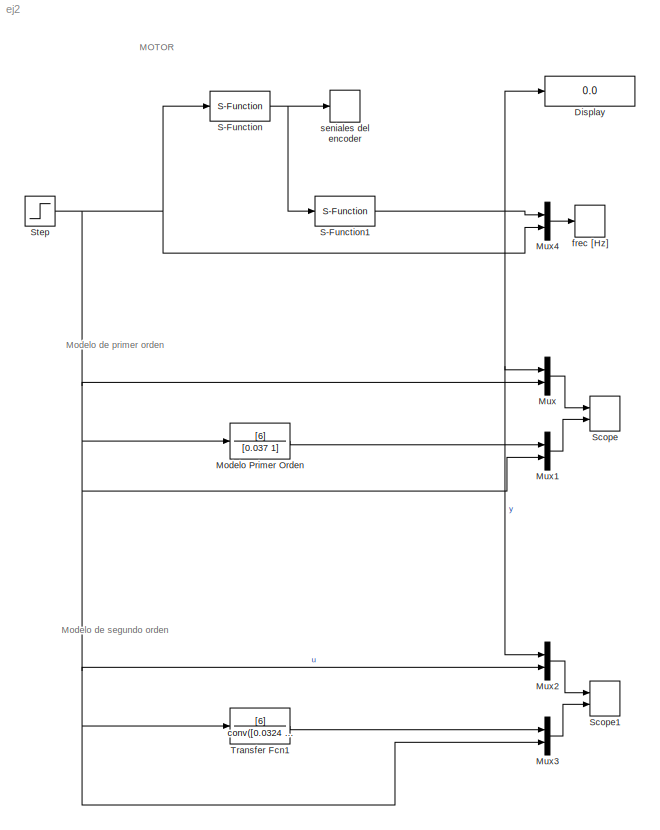
MODEL ej2
KIND model
BLOCK [Display] Display
  Decimation = 1
  Ports = [1]
  SID = 6
BLOCK [TransferFcn] Modelo Primer Orden
  Denominator = [0.037 1]
  Numerator = [6]
  SID = 14
BLOCK [Mux] Mux
  DisplayOption = bar
  Inputs = 2
  Ports = [2, 1]
  SID = 12
BLOCK [Mux] Mux1
  DisplayOption = bar
  Inputs = 2
  Ports = [2, 1]
  SID = 15
BLOCK [Mux] Mux2
  DisplayOption = bar
  Inputs = 2
  Ports = [2, 1]
  SID = 17
BLOCK [Mux] Mux3
  DisplayOption = bar
  Inputs = 2
  Ports = [2, 1]
  SID = 18
BLOCK [Mux] Mux4
  DisplayOption = bar
  Inputs = 2
  Ports = [2, 1]
  SID = 24
BLOCK [S-Function] S-Function
  FunctionName = dcmotor_qenc
  Parameters = 10
  Ports = [1, 1]
  SID = 1
BLOCK [S-Function] S-Function1
  FunctionName = encoder
  Parameters = 1E-5 10
  Ports = [1, 1]
  SID = 4
BLOCK [TimeScope] Scope
  NumInputPorts = 2
  Ports = [2]
  SID = 13
  ScopeSpecificationString = Simulink.scopes.TimeScopeBlockCfg('CurrentConfiguration', extmgr.ConfigurationSet(extmgr.Configuration('Core','General UI',true,'FigureColor',[1 1 1]),extmgr.Configuration('Core','Source UI',true),extmgr.Configuration('Sources','WiredSimulink',true,'DataLoggingVariableName','ScopeData2','DataLoggingDecimation','1','DataLoggingDecimateData',true,'DataLoggingSaveFormat','Array'),extmgr.Configuration...<+4012ch>
BLOCK [TimeScope] Scope1
  NumInputPorts = 2
  Ports = [2]
  SID = 19
  ScopeSpecificationString = Simulink.scopes.TimeScopeBlockCfg('CurrentConfiguration', extmgr.ConfigurationSet(extmgr.Configuration('Core','General UI',true,'FigureColor',[1 1 1]),extmgr.Configuration('Core','Source UI',true),extmgr.Configuration('Sources','WiredSimulink',true,'DataLoggingVariableName','ScopeData2','DataLoggingDecimation','1','DataLoggingDecimateData',true,'DataLoggingSaveFormat','Array'),extmgr.Configuration...<+4028ch>
BLOCK [Step] Step
  After = 12
  SID = 7
  SampleTime = 0
BLOCK [TransferFcn] Transfer Fcn1
  Denominator = conv([0.0324 1],[0.0036 1])
  Numerator = [6]
  SID = 20
BLOCK [TimeScope] frec [Hz]
  NumInputPorts = 1
  Ports = [1]
  SID = 23
  ScopeSpecificationString = Simulink.scopes.TimeScopeBlockCfg('CurrentConfiguration', extmgr.ConfigurationSet(extmgr.Configuration('Core','General UI',true,'FigureColor',[0.941176470588235 0.941176470588235 0.941176470588235]),extmgr.Configuration('Core','Source UI',true),extmgr.Configuration('Sources','WiredSimulink',true,'DataLoggingDecimation','1','DataLoggingDecimateData',true,'DataLoggingSaveFormat','Array'),extmgr.Conf...<+1878ch>
BLOCK [TimeScope] seniales del encoder
  NumInputPorts = 1
  Ports = [1]
  SID = 22
  ScopeSpecificationString = Simulink.scopes.TimeScopeBlockCfg('CurrentConfiguration', extmgr.ConfigurationSet(extmgr.Configuration('Core','General UI',true),extmgr.Configuration('Core','Source UI',true),extmgr.Configuration('Sources','WiredSimulink',true,'DataLoggingLimitDataPoints',true,'DataLoggingVariableName','ScopeData1','DataLoggingDecimation','1','DataLoggingDecimateData',true,'DataLoggingSaveFormat','Array'),extmgr.C...<+2026ch>
ANNOTATION (root): MOTOR
ANNOTATION (root): Modelo de primer orden
ANNOTATION (root): Modelo de segundo orden
LINE Modelo Primer Orden:1 -> Mux1:1
LINE Mux1:1 -> Scope:2
LINE Mux2:1 -> Scope1:1
LINE Mux3:1 -> Scope1:2
LINE Mux4:1 -> frec [Hz]:1
LINE Mux:1 -> Scope:1
NET S-Function1:1 -> Display:1, Mux2:1, Mux4:1, Mux:1
NET S-Function:1 -> S-Function1:1, seniales del encoder:1
NET Step:1 -> Modelo Primer Orden:1, Mux1:2, Mux2:2, Mux3:2, Mux4:2, Mux:2, S-Function:1, Transfer Fcn1:1
LINE Transfer Fcn1:1 -> Mux3:1
note: NET lines group one-source signal fan-out (src -> all destinations, sorted); 1:1 wires keep LINE
